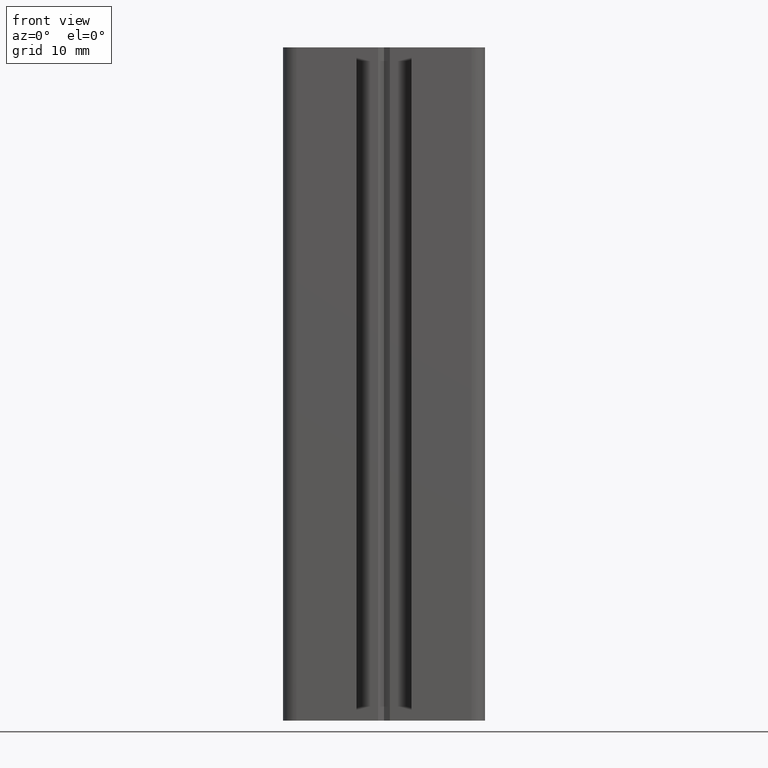
[diagram: clean part render]
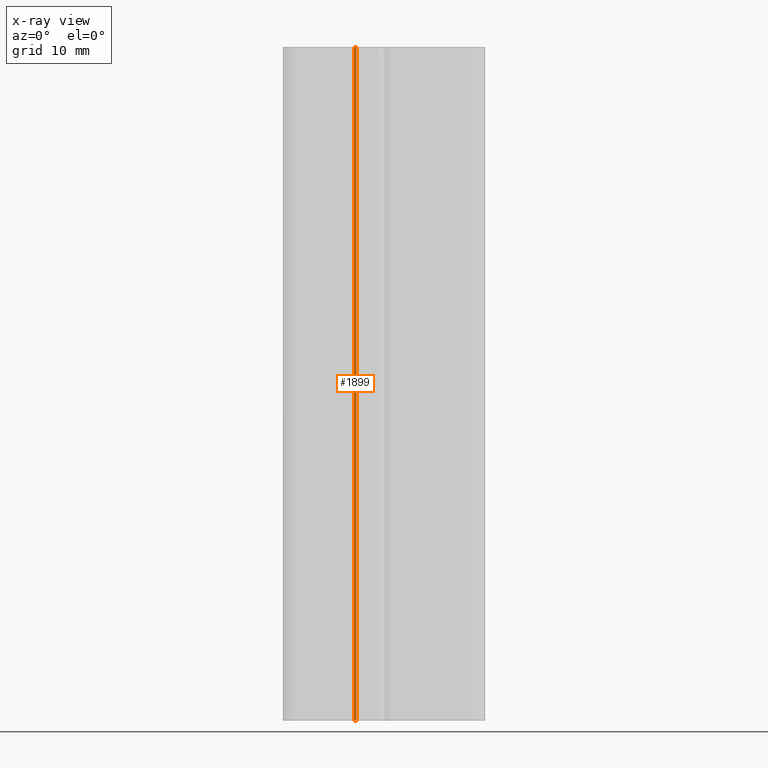
[diagram: x-ray — body ghosted, one internal face saturated and labeled with its STEP entity id]
A machine part, front view, then the same camera in x-ray: the body is ghosted and one INTERNAL B-rep face — a face not visible from any outside direction — is saturated and labeled: STEP entity #1899.
In plain terms, the highlighted planar face has unit normal (0, 1, 0).
Its self-contained STEP definition (entity closure, byte-faithful):
#1073 = VERTEX_POINT ( 'NONE', #3111 ) ;
#1139 = VERTEX_POINT ( 'NONE', #3228 ) ;
#1178 = EDGE_CURVE ( 'NONE', #1073, #1139, #3325, .T. ) ;
#1248 = EDGE_CURVE ( 'NONE', #1258, #1264, #3443, .T. ) ;
#1258 = VERTEX_POINT ( 'NONE', #3425 ) ;
#1264 = VERTEX_POINT ( 'NONE', #3474 ) ;
#1857 = ORIENTED_EDGE ( 'NONE', *, *, #1911, .F. ) ;
#1899 = ADVANCED_FACE ( 'NONE', ( #4480 ), #4506, .F. ) ;
#1900 = ORIENTED_EDGE ( 'NONE', *, *, #1248, .T. ) ;
#1902 = ORIENTED_EDGE ( 'NONE', *, *, #1915, .T. ) ;
#1903 = ORIENTED_EDGE ( 'NONE', *, *, #1178, .F. ) ;
#1911 = EDGE_CURVE ( 'NONE', #1139, #1264, #4547, .T. ) ;
#1915 = EDGE_CURVE ( 'NONE', #1073, #1258, #4597, .T. ) ;
#1918 = EDGE_LOOP ( 'NONE', ( #1900, #1857, #1903, #1902 ) ) ;
#3111 = CARTESIAN_POINT ( 'NONE',  ( -4.499999999999991100, -14.50000000000000000, 100.0000000000000000 ) ) ;
#3228 = CARTESIAN_POINT ( 'NONE',  ( -4.099999999999997900, -14.50000000000000000, 100.0000000000000000 ) ) ;
#3322 = DIRECTION ( 'NONE',  ( 1.000000000000000000, 0.0000000000000000000, 0.0000000000000000000 ) ) ;
#3323 = VECTOR ( 'NONE', #3322, 1000.000000000000000 ) ;
#3324 = CARTESIAN_POINT ( 'NONE',  ( -4.499999999999991100, -14.50000000000000000, 100.0000000000000000 ) ) ;
#3325 = LINE ( 'NONE', #3324, #3323 ) ;
#3425 = CARTESIAN_POINT ( 'NONE',  ( -4.499999999999991100, -14.50000000000000000, 0.0000000000000000000 ) ) ;
#3440 = DIRECTION ( 'NONE',  ( 1.000000000000000000, 0.0000000000000000000, 0.0000000000000000000 ) ) ;
#3441 = VECTOR ( 'NONE', #3440, 1000.000000000000000 ) ;
#3442 = CARTESIAN_POINT ( 'NONE',  ( -4.499999999999991100, -14.50000000000000000, 0.0000000000000000000 ) ) ;
#3443 = LINE ( 'NONE', #3442, #3441 ) ;
#3474 = CARTESIAN_POINT ( 'NONE',  ( -4.099999999999997900, -14.50000000000000000, 0.0000000000000000000 ) ) ;
#4480 = FACE_OUTER_BOUND ( 'NONE', #1918, .T. ) ;
#4506 = PLANE ( 'NONE',  #4513 ) ;
#4513 = AXIS2_PLACEMENT_3D ( 'NONE', #4536, #4562, #4561 ) ;
#4536 = CARTESIAN_POINT ( 'NONE',  ( -4.499999999999991100, -14.50000000000000000, 100.0000000000000000 ) ) ;
#4544 = DIRECTION ( 'NONE',  ( -0.0000000000000000000, -0.0000000000000000000, -1.000000000000000000 ) ) ;
#4545 = VECTOR ( 'NONE', #4544, 1000.000000000000000 ) ;
#4546 = CARTESIAN_POINT ( 'NONE',  ( -4.099999999999997900, -14.50000000000000000, 100.0000000000000000 ) ) ;
#4547 = LINE ( 'NONE', #4546, #4545 ) ;
#4561 = DIRECTION ( 'NONE',  ( 0.0000000000000000000, -0.0000000000000000000, 1.000000000000000000 ) ) ;
#4562 = DIRECTION ( 'NONE',  ( 0.0000000000000000000, 1.000000000000000000, 0.0000000000000000000 ) ) ;
#4594 = DIRECTION ( 'NONE',  ( -0.0000000000000000000, -0.0000000000000000000, -1.000000000000000000 ) ) ;
#4595 = VECTOR ( 'NONE', #4594, 1000.000000000000000 ) ;
#4596 = CARTESIAN_POINT ( 'NONE',  ( -4.499999999999991100, -14.50000000000000000, 100.0000000000000000 ) ) ;
#4597 = LINE ( 'NONE', #4596, #4595 ) ;